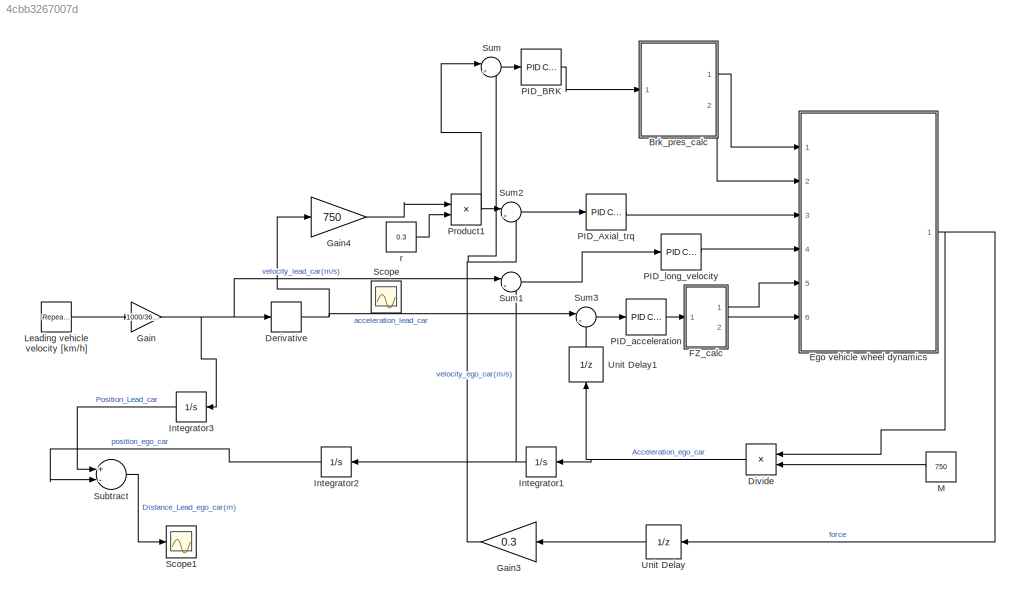
MODEL slx_4cbb3267007d
KIND model
CONFIG AbsTol = auto
CONFIG EnableMultiTasking = off
CONFIG FixedStep = auto
CONFIG MaxStep = auto
CONFIG MinStep = auto
CONFIG RelTol = 1e-3
CONFIG SampleTimeConstraint = Unconstrained
CONFIG Solver = FixedStepAuto
CONFIG SolverName = FixedStepAuto
CONFIG StartTime = 0.0
CONFIG StopTime = 110.0
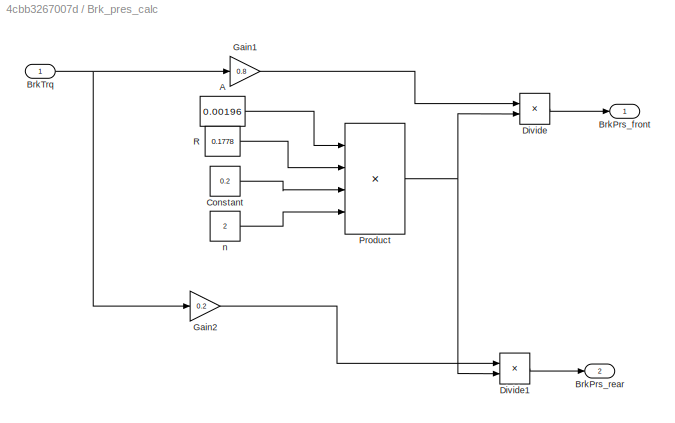
BLOCK [SubSystem] Brk_pres_calc
  Ports = [1, 2]
  RequestExecContextInheritance = off
  Variant = off
BLOCK [Constant] Brk_pres_calc/A
  Value = 0.00196
BLOCK [Outport] Brk_pres_calc/BrkPrs_front
  IconDisplay = Port number
BLOCK [Outport] Brk_pres_calc/BrkPrs_rear
  IconDisplay = Port number
  Port = 2
BLOCK [Inport] Brk_pres_calc/BrkTrq
  IconDisplay = Port number
BLOCK [Constant] Brk_pres_calc/Constant
  Value = 0.2
BLOCK [Product] Brk_pres_calc/Divide
  InputSameDT = off
  Inputs = */
  OutDataTypeStr = Inherit: Inherit via internal rule
  Ports = [2, 1]
  RndMeth = Floor
  SaturateOnIntegerOverflow = off
BLOCK [Product] Brk_pres_calc/Divide1
  InputSameDT = off
  Inputs = */
  OutDataTypeStr = Inherit: Inherit via internal rule
  Ports = [2, 1]
  RndMeth = Floor
  SaturateOnIntegerOverflow = off
BLOCK [Gain] Brk_pres_calc/Gain1
  Gain = 0.8
  OutDataTypeStr = Inherit: Inherit via internal rule
  ParamDataTypeStr = Inherit: Inherit via internal rule
  SaturateOnIntegerOverflow = off
BLOCK [Gain] Brk_pres_calc/Gain2
  Gain = 0.2
  OutDataTypeStr = Inherit: Inherit via internal rule
  ParamDataTypeStr = Inherit: Inherit via internal rule
  SaturateOnIntegerOverflow = off
BLOCK [Product] Brk_pres_calc/Product
  InputSameDT = off
  Inputs = 4
  OutDataTypeStr = Inherit: Inherit via internal rule
  Ports = [4, 1]
  RndMeth = Floor
  SaturateOnIntegerOverflow = off
BLOCK [Constant] Brk_pres_calc/R
  Value = 0.1778
BLOCK [Constant] Brk_pres_calc/n
  Value = 2
BLOCK [Derivative] Derivative
BLOCK [Product] Divide
  InputSameDT = off
  Inputs = */
  OutDataTypeStr = Inherit: Inherit via internal rule
  Ports = [2, 1]
  RndMeth = Floor
  SaturateOnIntegerOverflow = off
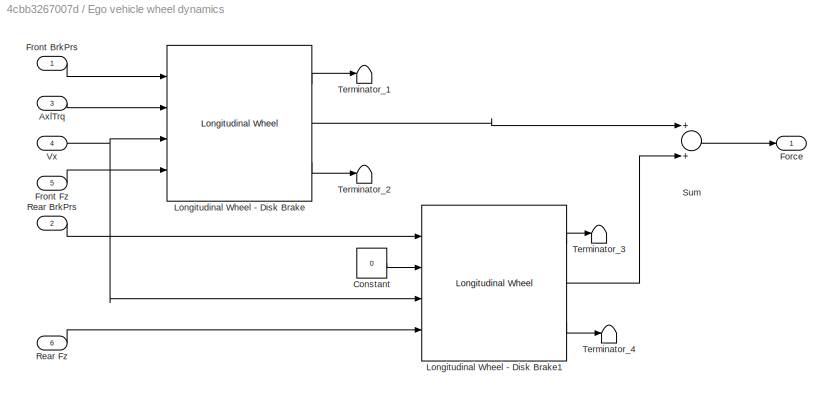
BLOCK [SubSystem] Ego vehicle wheel dynamics
  Ports = [6, 1]
  RequestExecContextInheritance = off
  Variant = off
BLOCK [Outport] Ego vehicle wheel dynamics/ Force
  IconDisplay = Port number
BLOCK [Inport] Ego vehicle wheel dynamics/ Front BrkPrs
  IconDisplay = Port number
BLOCK [Inport] Ego vehicle wheel dynamics/AxlTrq
  IconDisplay = Port number
  Port = 3
BLOCK [Constant] Ego vehicle wheel dynamics/Constant
  Value = 0
BLOCK [Inport] Ego vehicle wheel dynamics/Front Fz
  IconDisplay = Port number
  Port = 5
BLOCK [Reference] Ego vehicle wheel dynamics/Longitudinal Wheel - Disk Brake  REF=autolibshared/Longitudinal Wheel
  AttributesFormatString = Fx Type: %<FxType>\nRolling Type: %<rollingType>
  Ports = [4, 3]
  SourceBlock = autolibshared/Longitudinal Wheel
  SourceType = Longitudinal Wheel
BLOCK [Reference] Ego vehicle wheel dynamics/Longitudinal Wheel - Disk Brake1  REF=autolibshared/Longitudinal Wheel
  AttributesFormatString = Fx Type: %<FxType>\nRolling Type: %<rollingType>
  Ports = [4, 3]
  SourceBlock = autolibshared/Longitudinal Wheel
  SourceType = Longitudinal Wheel
BLOCK [Inport] Ego vehicle wheel dynamics/Rear BrkPrs
  IconDisplay = Port number
  Port = 2
BLOCK [Inport] Ego vehicle wheel dynamics/Rear Fz
  IconDisplay = Port number
  Port = 6
BLOCK [Sum] Ego vehicle wheel dynamics/Sum
  InputSameDT = off
  OutDataTypeStr = Inherit: Inherit via internal rule
  Ports = [2, 1]
  SaturateOnIntegerOverflow = off
BLOCK [Terminator] Ego vehicle wheel dynamics/Terminator_1
BLOCK [Terminator] Ego vehicle wheel dynamics/Terminator_2
BLOCK [Terminator] Ego vehicle wheel dynamics/Terminator_3
BLOCK [Terminator] Ego vehicle wheel dynamics/Terminator_4
BLOCK [Inport] Ego vehicle wheel dynamics/Vx
  IconDisplay = Port number
  Port = 4
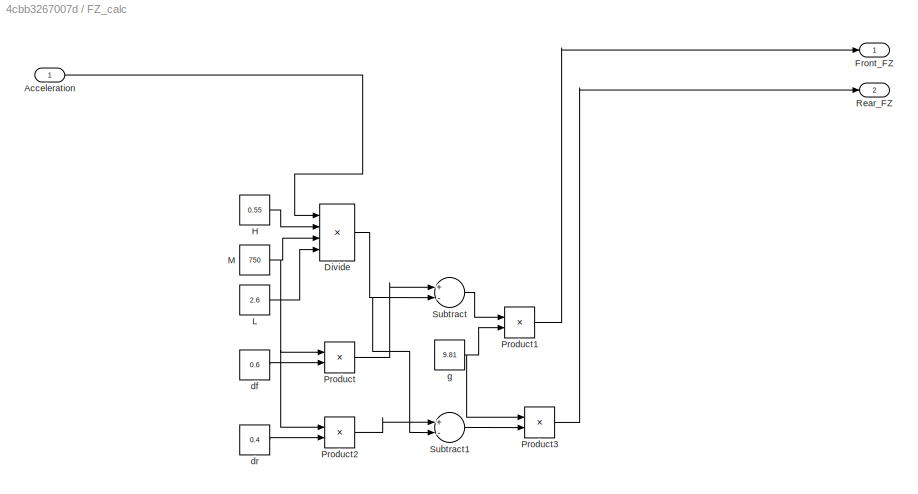
BLOCK [SubSystem] FZ_calc
  Ports = [1, 2]
  RequestExecContextInheritance = off
  Variant = off
BLOCK [Inport] FZ_calc/Acceleration
  IconDisplay = Port number
BLOCK [Product] FZ_calc/Divide
  InputSameDT = off
  Inputs = ***/
  OutDataTypeStr = Inherit: Inherit via internal rule
  Ports = [4, 1]
  RndMeth = Floor
  SaturateOnIntegerOverflow = off
BLOCK [Outport] FZ_calc/Front_FZ
  IconDisplay = Port number
BLOCK [Constant] FZ_calc/H
  Value = 0.55
BLOCK [Constant] FZ_calc/L
  Value = 2.6
BLOCK [Constant] FZ_calc/M
  Value = 750
BLOCK [Product] FZ_calc/Product
  InputSameDT = off
  OutDataTypeStr = Inherit: Inherit via internal rule
  Ports = [2, 1]
  RndMeth = Floor
  SaturateOnIntegerOverflow = off
BLOCK [Product] FZ_calc/Product1
  InputSameDT = off
  OutDataTypeStr = Inherit: Inherit via internal rule
  Ports = [2, 1]
  RndMeth = Floor
  SaturateOnIntegerOverflow = off
BLOCK [Product] FZ_calc/Product2
  InputSameDT = off
  OutDataTypeStr = Inherit: Inherit via internal rule
  Ports = [2, 1]
  RndMeth = Floor
  SaturateOnIntegerOverflow = off
BLOCK [Product] FZ_calc/Product3
  InputSameDT = off
  OutDataTypeStr = Inherit: Inherit via internal rule
  Ports = [2, 1]
  RndMeth = Floor
  SaturateOnIntegerOverflow = off
BLOCK [Outport] FZ_calc/Rear_FZ
  IconDisplay = Port number
  Port = 2
BLOCK [Sum] FZ_calc/Subtract
  InputSameDT = off
  Inputs = +-
  OutDataTypeStr = Inherit: Inherit via internal rule
  Ports = [2, 1]
  SaturateOnIntegerOverflow = off
BLOCK [Sum] FZ_calc/Subtract1
  InputSameDT = off
  Inputs = +-
  OutDataTypeStr = Inherit: Inherit via internal rule
  Ports = [2, 1]
  SaturateOnIntegerOverflow = off
BLOCK [Constant] FZ_calc/df
  Value = 0.6
BLOCK [Constant] FZ_calc/dr
  Value = 0.4
BLOCK [Constant] FZ_calc/g
  Value = 9.81
BLOCK [Gain] Gain
  Gain = 1000/3600
  OutDataTypeStr = Inherit: Inherit via internal rule
  ParamDataTypeStr = Inherit: Inherit via internal rule
  SaturateOnIntegerOverflow = off
BLOCK [Gain] Gain3
  Gain = 0.3
  OutDataTypeStr = Inherit: Inherit via internal rule
  ParamDataTypeStr = Inherit: Inherit via internal rule
  SaturateOnIntegerOverflow = off
BLOCK [Gain] Gain4
  Gain = 750
  OutDataTypeStr = Inherit: Inherit via internal rule
  ParamDataTypeStr = Inherit: Inherit via internal rule
  SaturateOnIntegerOverflow = off
BLOCK [Integrator] Integrator1
  InitialCondition = 8.33
  Ports = [1, 1]
BLOCK [Integrator] Integrator2
  Ports = [1, 1]
BLOCK [Integrator] Integrator3
  InitialCondition = 25
  Ports = [1, 1]
BLOCK [Reference] Leading vehicle velocity [km//h]  REF=simulink/Sources/Repeating
Sequence
Interpolated
  Ports = [0, 1]
  SourceBlock = simulink/Sources/Repeating\nSequence\nInterpolated
  SourceType = Repeating Sequence Interpolated
BLOCK [Constant] M
  Value = 750
BLOCK [Reference] PID_Axial_trq  REF=simulink/Continuous/PID Controller
  Ports = [1, 1]
  SourceBlock = simulink/Continuous/PID Controller
  SourceType = PID 1dof
BLOCK [Reference] PID_BRK  REF=simulink/Continuous/PID Controller
  Ports = [1, 1]
  SourceBlock = simulink/Continuous/PID Controller
  SourceType = PID 1dof
BLOCK [Reference] PID_acceleration  REF=simulink/Continuous/PID Controller
  Ports = [1, 1]
  SourceBlock = simulink/Continuous/PID Controller
  SourceType = PID 1dof
BLOCK [Reference] PID_long_velocity  REF=simulink/Continuous/PID Controller
  Ports = [1, 1]
  SourceBlock = simulink/Continuous/PID Controller
  SourceType = PID 1dof
BLOCK [Product] Product1
  InputSameDT = off
  OutDataTypeStr = Inherit: Inherit via internal rule
  Ports = [2, 1]
  RndMeth = Floor
  SaturateOnIntegerOverflow = off
BLOCK [Scope] Scope
  IOType = viewer
  NumInputPorts = 1
  Ports = []
  ScopeSpecificationString = Simulink.scopes.TimeScopeBlockCfg('CurrentConfiguration', extmgr.ConfigurationSet(extmgr.Configuration('Core','General UI',true),extmgr.Configuration('Core','Source UI',true),extmgr.Configuration('Sources','WiredSimulink',true),extmgr.Configuration('Visuals','Time Domain',true),extmgr.Configuration('Tools','Plot Navigation',true),extmgr.Configuration('Tools','Measurements',true,'Version','2016b'))...<+19ch>
BLOCK [Scope] Scope1
  NumInputPorts = 1
  Ports = [1]
  ScopeSpecificationString = Simulink.scopes.TimeScopeBlockCfg('CurrentConfiguration', extmgr.ConfigurationSet(extmgr.Configuration('Core','General UI',true),extmgr.Configuration('Core','Source UI',true),extmgr.Configuration('Sources','WiredSimulink',true,'DataLoggingVariableName','ScopeData1'),extmgr.Configuration('Visuals','Time Domain',true,'SerializedDisplays',{struct('MinYLimReal','24.00698','MaxYLimReal','26.74187','YLa...<+1729ch>
BLOCK [Sum] Subtract
  InputSameDT = off
  Inputs = +-
  OutDataTypeStr = Inherit: Inherit via internal rule
  Ports = [2, 1]
  SaturateOnIntegerOverflow = off
BLOCK [Sum] Sum
  IconShape = round
  InputSameDT = off
  Inputs = |+-
  OutDataTypeStr = Inherit: Inherit via internal rule
  Ports = [2, 1]
  SaturateOnIntegerOverflow = off
BLOCK [Sum] Sum1
  IconShape = round
  InputSameDT = off
  Inputs = |+-
  OutDataTypeStr = Inherit: Inherit via internal rule
  Ports = [2, 1]
  SaturateOnIntegerOverflow = off
BLOCK [Sum] Sum2
  IconShape = round
  InputSameDT = off
  Inputs = |+-
  OutDataTypeStr = Inherit: Inherit via internal rule
  Ports = [2, 1]
  SaturateOnIntegerOverflow = off
BLOCK [Sum] Sum3
  IconShape = round
  InputSameDT = off
  Inputs = |+-
  OutDataTypeStr = Inherit: Inherit via internal rule
  Ports = [2, 1]
  SaturateOnIntegerOverflow = off
BLOCK [UnitDelay] Unit Delay
  InputProcessing = Elements as channels (sample based)
  SampleTime = -1
BLOCK [UnitDelay] Unit Delay1
  InputProcessing = Elements as channels (sample based)
  SampleTime = -1
BLOCK [Constant] r
  Value = 0.3
LINE Brk_pres_calc/A:1 -> Brk_pres_calc/Product:1
NET Brk_pres_calc/BrkTrq:1 -> Brk_pres_calc/Gain1:1, Brk_pres_calc/Gain2:1
LINE Brk_pres_calc/Constant:1 -> Brk_pres_calc/Product:3
LINE Brk_pres_calc/Divide1:1 -> Brk_pres_calc/BrkPrs_rear:1
LINE Brk_pres_calc/Divide:1 -> Brk_pres_calc/BrkPrs_front:1
LINE Brk_pres_calc/Gain1:1 -> Brk_pres_calc/Divide:1
LINE Brk_pres_calc/Gain2:1 -> Brk_pres_calc/Divide1:1
NET Brk_pres_calc/Product:1 -> Brk_pres_calc/Divide1:2, Brk_pres_calc/Divide:2
LINE Brk_pres_calc/R:1 -> Brk_pres_calc/Product:2
LINE Brk_pres_calc/n:1 -> Brk_pres_calc/Product:4
LINE Brk_pres_calc:1 -> Ego vehicle wheel dynamics:1
LINE Brk_pres_calc:2 -> Ego vehicle wheel dynamics:2
NET Derivative:1 -> Gain4:1, Sum3:1
NET Divide:1 -> Integrator1:1, Unit Delay1:1
LINE Ego vehicle wheel dynamics/ Front BrkPrs:1 -> Ego vehicle wheel dynamics/Longitudinal Wheel - Disk Brake:1
LINE Ego vehicle wheel dynamics/AxlTrq:1 -> Ego vehicle wheel dynamics/Longitudinal Wheel - Disk Brake:2
LINE Ego vehicle wheel dynamics/Constant:1 -> Ego vehicle wheel dynamics/Longitudinal Wheel - Disk Brake1:2
LINE Ego vehicle wheel dynamics/Front Fz:1 -> Ego vehicle wheel dynamics/Longitudinal Wheel - Disk Brake:4
LINE Ego vehicle wheel dynamics/Longitudinal Wheel - Disk Brake1:1 -> Ego vehicle wheel dynamics/Terminator_3:1
LINE Ego vehicle wheel dynamics/Longitudinal Wheel - Disk Brake1:2 -> Ego vehicle wheel dynamics/Sum:2
LINE Ego vehicle wheel dynamics/Longitudinal Wheel - Disk Brake1:3 -> Ego vehicle wheel dynamics/Terminator_4:1
LINE Ego vehicle wheel dynamics/Longitudinal Wheel - Disk Brake:1 -> Ego vehicle wheel dynamics/Terminator_1:1
LINE Ego vehicle wheel dynamics/Longitudinal Wheel - Disk Brake:2 -> Ego vehicle wheel dynamics/Sum:1
LINE Ego vehicle wheel dynamics/Longitudinal Wheel - Disk Brake:3 -> Ego vehicle wheel dynamics/Terminator_2:1
LINE Ego vehicle wheel dynamics/Rear BrkPrs:1 -> Ego vehicle wheel dynamics/Longitudinal Wheel - Disk Brake1:1
LINE Ego vehicle wheel dynamics/Rear Fz:1 -> Ego vehicle wheel dynamics/Longitudinal Wheel - Disk Brake1:4
LINE Ego vehicle wheel dynamics/Sum:1 -> Ego vehicle wheel dynamics/ Force:1
NET Ego vehicle wheel dynamics/Vx:1 -> Ego vehicle wheel dynamics/Longitudinal Wheel - Disk Brake1:3, Ego vehicle wheel dynamics/Longitudinal Wheel - Disk Brake:3
NET Ego vehicle wheel dynamics:1 -> Divide:1, Unit Delay:1
LINE FZ_calc/Acceleration:1 -> FZ_calc/Divide:1
NET FZ_calc/Divide:1 -> FZ_calc/Subtract1:2, FZ_calc/Subtract:2
LINE FZ_calc/H:1 -> FZ_calc/Divide:2
LINE FZ_calc/L:1 -> FZ_calc/Divide:4
NET FZ_calc/M:1 -> FZ_calc/Divide:3, FZ_calc/Product2:1, FZ_calc/Product:1
LINE FZ_calc/Product1:1 -> FZ_calc/Front_FZ:1
LINE FZ_calc/Product2:1 -> FZ_calc/Subtract1:1
LINE FZ_calc/Product3:1 -> FZ_calc/Rear_FZ:1
LINE FZ_calc/Product:1 -> FZ_calc/Subtract:1
LINE FZ_calc/Subtract1:1 -> FZ_calc/Product3:2
LINE FZ_calc/Subtract:1 -> FZ_calc/Product1:1
LINE FZ_calc/df:1 -> FZ_calc/Product:2
LINE FZ_calc/dr:1 -> FZ_calc/Product2:2
NET FZ_calc/g:1 -> FZ_calc/Product1:2, FZ_calc/Product3:1
LINE FZ_calc:1 -> Ego vehicle wheel dynamics:5
LINE FZ_calc:2 -> Ego vehicle wheel dynamics:6
NET Gain3:1 -> Sum2:2, Sum:2
LINE Gain4:1 -> Product1:1
NET Gain:1 -> Derivative:1, Integrator3:1, Sum1:1
NET Integrator1:1 -> Integrator2:1, Sum1:2
LINE Integrator2:1 -> Subtract:2
LINE Integrator3:1 -> Subtract:1
LINE Leading vehicle velocity [km//h]:1 -> Gain:1
LINE M:1 -> Divide:2
LINE PID_Axial_trq:1 -> Ego vehicle wheel dynamics:3
LINE PID_BRK:1 -> Brk_pres_calc:1
LINE PID_acceleration:1 -> FZ_calc:1
LINE PID_long_velocity:1 -> Ego vehicle wheel dynamics:4
NET Product1:1 -> Sum2:1, Sum:1
LINE Subtract:1 -> Scope1:1
LINE Sum1:1 -> PID_long_velocity:1
LINE Sum2:1 -> PID_Axial_trq:1
LINE Sum3:1 -> PID_acceleration:1
LINE Sum:1 -> PID_BRK:1
LINE Unit Delay1:1 -> Sum3:2
LINE Unit Delay:1 -> Gain3:1
LINE r:1 -> Product1:2
note: NET lines group one-source signal fan-out (src -> all destinations, sorted); 1:1 wires keep LINE
